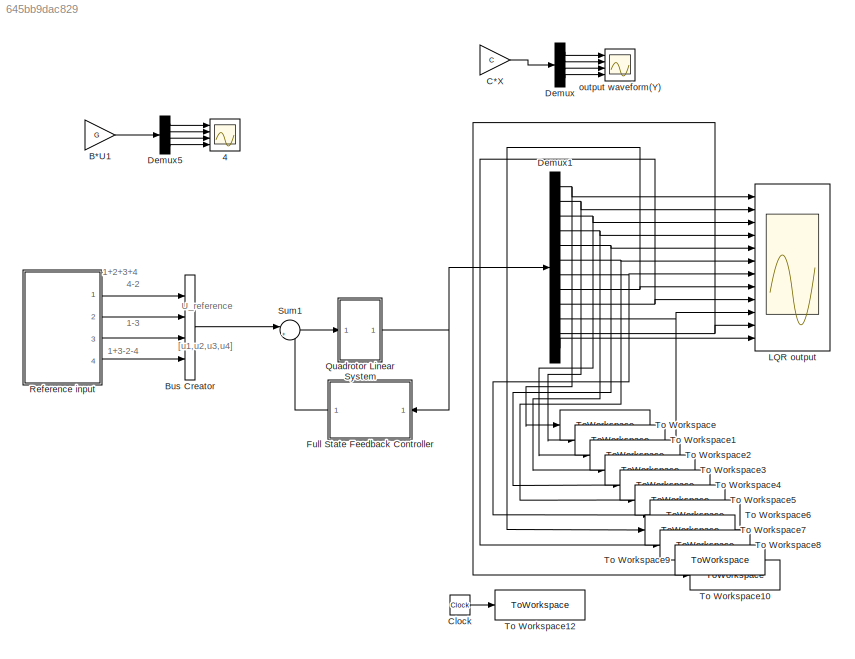
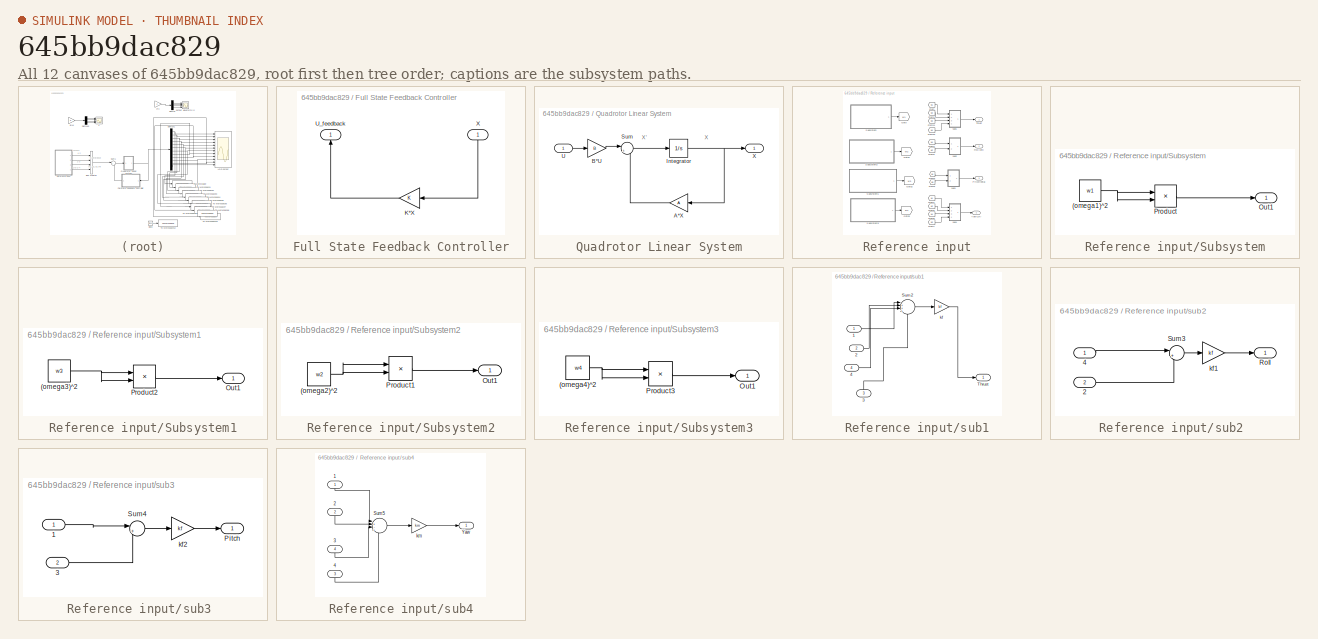
[diagram: thumbnail index - all 12 canvases of the model, root first then tree order]
MODEL slx_645bb9dac829
KIND model
CONFIG AbsTol = auto
CONFIG EnableMultiTasking = off
CONFIG FixedStep = auto
CONFIG MaxStep = auto
CONFIG MinStep = auto
CONFIG RelTol = 1e-3
CONFIG SampleTimeConstraint = Unconstrained
CONFIG Solver = VariableStepAuto
CONFIG SolverName = VariableStepAuto
CONFIG StartTime = 0.0
CONFIG StopTime = 10
BLOCK [Scope] 4
  Floating = off
  NumInputPorts = 4
  Ports = [4]
  ScopeSpecificationString = Simulink.scopes.TimeScopeBlockCfg('CurrentConfiguration', extmgr.ConfigurationSet(extmgr.Configuration('Core','General UI',true),extmgr.Configuration('Core','Source UI',true),extmgr.Configuration('Sources','WiredSimulink',true,'DataLoggingVariableName','ScopeData3'),extmgr.Configuration('Visuals','Time Domain',true,'SerializedDisplays',{struct('MinYLimReal','-260277233475571970000.00000','MaxYLimR...<+3624ch>
BLOCK [Gain] B*U1
  Gain = G
  Multiplication = Matrix(K*u)
BLOCK [BusCreator] Bus Creator
  DisplayOption = bar
  InheritFromInputs = on
  Inputs = 4
  Ports = [4, 1]
BLOCK [Gain] C*X
  Gain = C
  Multiplication = Matrix(K*u)
BLOCK [Clock] Clock
  Decimation = 1
BLOCK [Demux] Demux
  Ports = [1, 4]
BLOCK [Demux] Demux1
  Outputs = 12
  Ports = [1, 12]
BLOCK [Demux] Demux5
  Ports = [1, 4]
BLOCK [SubSystem] Full State Feedback Controller
  Ports = [1, 1]
  RequestExecContextInheritance = off
BLOCK [Gain] Full State Feedback Controller/K*X
  Gain = K
  Multiplication = Matrix(K*u)
BLOCK [Outport] Full State Feedback Controller/U_feedback
  NameLocation = right
BLOCK [Inport] Full State Feedback Controller/X
  NameLocation = right
BLOCK [Scope] LQR output 
  Floating = off
  NumInputPorts = 12
  Ports = [12]
  ScopeSpecificationString = Simulink.scopes.TimeScopeBlockCfg('CurrentConfiguration', extmgr.ConfigurationSet(extmgr.Configuration('Core','General UI',true,'FigureColor',[1 1 1]),extmgr.Configuration('Core','Source UI',true),extmgr.Configuration('Sources','WiredSimulink',true,'DataLoggingVariableName','ScopeData5','DataLogging',true),extmgr.Configuration('Visuals','Time Domain',true,'SerializedDisplays',{struct('MinYLimReal'...<+10709ch>
BLOCK [SubSystem] Quadrotor Linear System
  Ports = [1, 1]
  RequestExecContextInheritance = off
BLOCK [Gain] Quadrotor Linear System/A*X
  Gain = A
  Multiplication = Matrix(K*u)
BLOCK [Gain] Quadrotor Linear System/B*U
  Gain = B
  Multiplication = Matrix(K*u)
BLOCK [Integrator] Quadrotor Linear System/Integrator
  InitialCondition = [1,1,1,1,1,1,1,1,1,1,1,1]
  Ports = [1, 1]
BLOCK [Sum] Quadrotor Linear System/Sum
  Inputs = |++
  Ports = [2, 1]
BLOCK [Inport] Quadrotor Linear System/U
BLOCK [Outport] Quadrotor Linear System/X
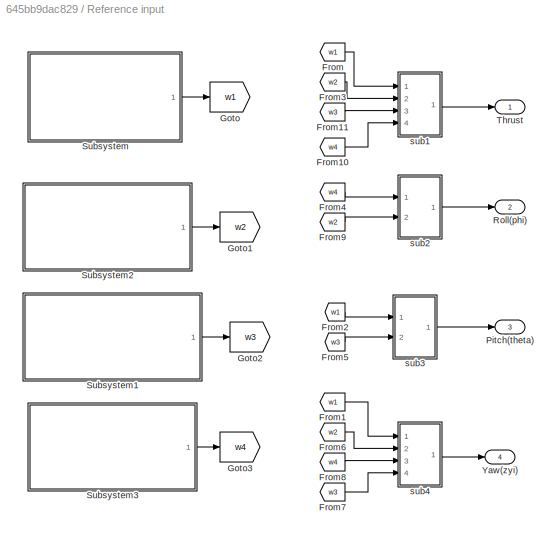
BLOCK [SubSystem] Reference input
  Ports = [0, 4]
  RequestExecContextInheritance = off
BLOCK [From] Reference input/From
  GotoTag = w1
BLOCK [From] Reference input/From1
  GotoTag = w1
BLOCK [From] Reference input/From10
  GotoTag = w4
BLOCK [From] Reference input/From11
  GotoTag = w3
BLOCK [From] Reference input/From2
  GotoTag = w1
BLOCK [From] Reference input/From3
  GotoTag = w2
BLOCK [From] Reference input/From4
  GotoTag = w4
BLOCK [From] Reference input/From5
  GotoTag = w3
BLOCK [From] Reference input/From6
  GotoTag = w2
BLOCK [From] Reference input/From7
  GotoTag = w3
BLOCK [From] Reference input/From8
  GotoTag = w4
BLOCK [From] Reference input/From9
  GotoTag = w2
BLOCK [Goto] Reference input/Goto
  GotoTag = w1
BLOCK [Goto] Reference input/Goto1
  GotoTag = w2
BLOCK [Goto] Reference input/Goto2
  GotoTag = w3
BLOCK [Goto] Reference input/Goto3
  GotoTag = w4
BLOCK [Outport] Reference input/Pitch(theta)
  Port = 3
BLOCK [Outport] Reference input/Roll(phi)
  Port = 2
BLOCK [SubSystem] Reference input/Subsystem
  Ports = [0, 1]
  RequestExecContextInheritance = off
BLOCK [Constant] Reference input/Subsystem/(omega1)^2
  NameLocation = top
  Value = w1
BLOCK [Outport] Reference input/Subsystem/Out1
BLOCK [Product] Reference input/Subsystem/Product
  Ports = [2, 1]
BLOCK [SubSystem] Reference input/Subsystem1
  Ports = [0, 1]
  RequestExecContextInheritance = off
BLOCK [Constant] Reference input/Subsystem1/(omega3)^2
  Value = w3
BLOCK [Outport] Reference input/Subsystem1/Out1
BLOCK [Product] Reference input/Subsystem1/Product2
  Ports = [2, 1]
BLOCK [SubSystem] Reference input/Subsystem2
  Ports = [0, 1]
  RequestExecContextInheritance = off
BLOCK [Constant] Reference input/Subsystem2/(omega2)^2
  Value = w2
BLOCK [Outport] Reference input/Subsystem2/Out1
BLOCK [Product] Reference input/Subsystem2/Product1
  Ports = [2, 1]
BLOCK [SubSystem] Reference input/Subsystem3
  Ports = [0, 1]
  RequestExecContextInheritance = off
BLOCK [Constant] Reference input/Subsystem3/(omega4)^2
  Value = w4
BLOCK [Outport] Reference input/Subsystem3/Out1
BLOCK [Product] Reference input/Subsystem3/Product3
  Ports = [2, 1]
BLOCK [Outport] Reference input/Thrust
BLOCK [Outport] Reference input/Yaw(zyi)
  Port = 4
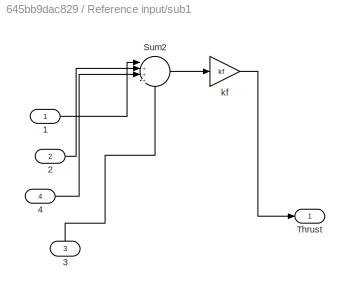
BLOCK [SubSystem] Reference input/sub1
  Ports = [4, 1]
  RequestExecContextInheritance = off
BLOCK [Inport] Reference input/sub1/1
BLOCK [Inport] Reference input/sub1/2
  Port = 2
BLOCK [Inport] Reference input/sub1/3
  NameLocation = right
  Port = 3
BLOCK [Inport] Reference input/sub1/4
  Port = 4
BLOCK [Sum] Reference input/sub1/Sum2
  Inputs = |++++
  Ports = [4, 1]
BLOCK [Outport] Reference input/sub1/Thrust
BLOCK [Gain] Reference input/sub1/kf
  Gain = kf
BLOCK [SubSystem] Reference input/sub2 
  Ports = [2, 1]
  RequestExecContextInheritance = off
BLOCK [Inport] Reference input/sub2 /2
  Port = 2
BLOCK [Inport] Reference input/sub2 /4
BLOCK [Outport] Reference input/sub2 /Roll
BLOCK [Sum] Reference input/sub2 /Sum3
  Inputs = |+-
  Ports = [2, 1]
BLOCK [Gain] Reference input/sub2 /kf1
  Gain = kf
BLOCK [SubSystem] Reference input/sub3 
  Ports = [2, 1]
  RequestExecContextInheritance = off
BLOCK [Inport] Reference input/sub3 /1
BLOCK [Inport] Reference input/sub3 /3
  Port = 2
BLOCK [Outport] Reference input/sub3 /Pitch
BLOCK [Sum] Reference input/sub3 /Sum4
  Inputs = |+-
  Ports = [2, 1]
BLOCK [Gain] Reference input/sub3 /kf2
  Gain = kf
BLOCK [SubSystem] Reference input/sub4
  Ports = [4, 1]
  RequestExecContextInheritance = off
BLOCK [Inport] Reference input/sub4/1
  NameLocation = right
BLOCK [Inport] Reference input/sub4/2
  NameLocation = right
  Port = 2
BLOCK [Inport] Reference input/sub4/3 
  NameLocation = right
  Port = 4
BLOCK [Inport] Reference input/sub4/4 
  NameLocation = right
  Port = 3
BLOCK [Sum] Reference input/sub4/Sum5
  Inputs = |+-+-
  Ports = [4, 1]
BLOCK [Outport] Reference input/sub4/Yaw
BLOCK [Gain] Reference input/sub4/km
  Gain = km
BLOCK [Sum] Sum1
  Inputs = |+-
  Ports = [2, 1]
BLOCK [ToWorkspace] To Workspace
  FixptAsFi = on
  MaxDataPoints = inf
  Ports = [1]
  SampleTime = 0.1
  VariableName = x
BLOCK [ToWorkspace] To Workspace1
  FixptAsFi = on
  MaxDataPoints = inf
  Ports = [1]
  SampleTime = 0.1
  VariableName = y
BLOCK [ToWorkspace] To Workspace10
  FixptAsFi = on
  MaxDataPoints = inf
  Ports = [1]
  SampleTime = 0.1
  VariableName = q
BLOCK [ToWorkspace] To Workspace12
  FixptAsFi = on
  MaxDataPoints = inf
  Ports = [1]
  SampleTime = 0.001
  VariableName = t
BLOCK [ToWorkspace] To Workspace2
  FixptAsFi = on
  MaxDataPoints = inf
  Ports = [1]
  SampleTime = 0.1
  VariableName = z
BLOCK [ToWorkspace] To Workspace3
  FixptAsFi = on
  MaxDataPoints = inf
  Ports = [1]
  SampleTime = 0.1
  VariableName = x_dot
BLOCK [ToWorkspace] To Workspace4
  FixptAsFi = on
  MaxDataPoints = inf
  Ports = [1]
  SampleTime = 0.1
  VariableName = y_dot
BLOCK [ToWorkspace] To Workspace5
  FixptAsFi = on
  MaxDataPoints = inf
  Ports = [1]
  SampleTime = 0.1
  VariableName = z_dot
BLOCK [ToWorkspace] To Workspace6
  FixptAsFi = on
  MaxDataPoints = inf
  Ports = [1]
  SampleTime = 0.1
  VariableName = phi
BLOCK [ToWorkspace] To Workspace7
  FixptAsFi = on
  MaxDataPoints = inf
  Ports = [1]
  SampleTime = 0.1
  VariableName = theta
BLOCK [ToWorkspace] To Workspace8
  FixptAsFi = on
  MaxDataPoints = inf
  Ports = [1]
  SampleTime = 0.1
  VariableName = zyi
BLOCK [ToWorkspace] To Workspace9
  FixptAsFi = on
  MaxDataPoints = inf
  Ports = [1]
  SampleTime = 0.1
  VariableName = p
BLOCK [Scope] output waveform(Y)
  Floating = off
  NumInputPorts = 4
  Ports = [4]
  ScopeSpecificationString = Simulink.scopes.TimeScopeBlockCfg('CurrentConfiguration', extmgr.ConfigurationSet(extmgr.Configuration('Core','General UI',true),extmgr.Configuration('Core','Source UI',true),extmgr.Configuration('Sources','WiredSimulink',true),extmgr.Configuration('Visuals','Time Domain',true,'SerializedDisplays',{struct('MinYLimReal','0.03272','MaxYLimReal','1.10877','YLabelReal','','MinYLimMag','0.03272','MaxYL...<+3349ch>
ANNOTATION (root): 1+2+3+4
ANNOTATION (root): 1+3-2-4
ANNOTATION (root): 1-3
ANNOTATION (root): 4-2
ANNOTATION (root): U_reference
ANNOTATION (root): [u1,u2,u3,u4]
ANNOTATION Quadrotor Linear System: X
ANNOTATION Quadrotor Linear System: X'
LINE B*U1:1 -> Demux5:1
LINE Bus Creator:1 -> Sum1:1
LINE C*X:1 -> Demux:1
LINE Clock:1 -> To Workspace12:1
NET Demux1:1 -> LQR output :1, To Workspace:1
NET Demux1:10 -> LQR output :10, To Workspace9:1
NET Demux1:11 -> LQR output :11, To Workspace10:1
LINE Demux1:12 -> LQR output :12
NET Demux1:2 -> LQR output :2, To Workspace1:1
NET Demux1:3 -> LQR output :3, To Workspace2:1
NET Demux1:4 -> LQR output :4, To Workspace3:1
NET Demux1:5 -> LQR output :5, To Workspace4:1
NET Demux1:6 -> LQR output :6, To Workspace5:1
NET Demux1:7 -> LQR output :7, To Workspace6:1
NET Demux1:8 -> LQR output :8, To Workspace7:1
NET Demux1:9 -> LQR output :9, To Workspace8:1
LINE Demux5:1 -> 4:1
LINE Demux5:2 -> 4:2
LINE Demux5:3 -> 4:3
LINE Demux5:4 -> 4:4
LINE Demux:1 -> output waveform(Y):1
LINE Demux:2 -> output waveform(Y):2
LINE Demux:3 -> output waveform(Y):3
LINE Demux:4 -> output waveform(Y):4
LINE Full State Feedback Controller/K*X:1 -> Full State Feedback Controller/U_feedback:1
LINE Full State Feedback Controller/X:1 -> Full State Feedback Controller/K*X:1
LINE Full State Feedback Controller:1 -> Sum1:2
LINE Quadrotor Linear System/A*X:1 -> Quadrotor Linear System/Sum:2
LINE Quadrotor Linear System/B*U:1 -> Quadrotor Linear System/Sum:1
NET Quadrotor Linear System/Integrator:1 -> Quadrotor Linear System/A*X:1, Quadrotor Linear System/X:1
LINE Quadrotor Linear System/Sum:1 -> Quadrotor Linear System/Integrator:1
LINE Quadrotor Linear System/U:1 -> Quadrotor Linear System/B*U:1
NET Quadrotor Linear System:1 -> Demux1:1, Full State Feedback Controller:1
LINE Reference input/From10:1 -> Reference input/sub1:4
LINE Reference input/From11:1 -> Reference input/sub1:3
LINE Reference input/From1:1 -> Reference input/sub4:1
LINE Reference input/From2:1 -> Reference input/sub3 :1
LINE Reference input/From3:1 -> Reference input/sub1:2
LINE Reference input/From4:1 -> Reference input/sub2 :1
LINE Reference input/From5:1 -> Reference input/sub3 :2
LINE Reference input/From6:1 -> Reference input/sub4:2
LINE Reference input/From7:1 -> Reference input/sub4:4
LINE Reference input/From8:1 -> Reference input/sub4:3
LINE Reference input/From9:1 -> Reference input/sub2 :2
LINE Reference input/From:1 -> Reference input/sub1:1
NET Reference input/Subsystem/(omega1)^2:1 -> Reference input/Subsystem/Product:1, Reference input/Subsystem/Product:2
LINE Reference input/Subsystem/Product:1 -> Reference input/Subsystem/Out1:1
NET Reference input/Subsystem1/(omega3)^2:1 -> Reference input/Subsystem1/Product2:1, Reference input/Subsystem1/Product2:2
LINE Reference input/Subsystem1/Product2:1 -> Reference input/Subsystem1/Out1:1
LINE Reference input/Subsystem1:1 -> Reference input/Goto2:1
NET Reference input/Subsystem2/(omega2)^2:1 -> Reference input/Subsystem2/Product1:1, Reference input/Subsystem2/Product1:2
LINE Reference input/Subsystem2/Product1:1 -> Reference input/Subsystem2/Out1:1
LINE Reference input/Subsystem2:1 -> Reference input/Goto1:1
NET Reference input/Subsystem3/(omega4)^2:1 -> Reference input/Subsystem3/Product3:1, Reference input/Subsystem3/Product3:2
LINE Reference input/Subsystem3/Product3:1 -> Reference input/Subsystem3/Out1:1
LINE Reference input/Subsystem3:1 -> Reference input/Goto3:1
LINE Reference input/Subsystem:1 -> Reference input/Goto:1
LINE Reference input/sub1/1:1 -> Reference input/sub1/Sum2:1
LINE Reference input/sub1/2:1 -> Reference input/sub1/Sum2:2
LINE Reference input/sub1/3:1 -> Reference input/sub1/Sum2:4
LINE Reference input/sub1/4:1 -> Reference input/sub1/Sum2:3
LINE Reference input/sub1/Sum2:1 -> Reference input/sub1/kf:1
LINE Reference input/sub1/kf:1 -> Reference input/sub1/Thrust:1
LINE Reference input/sub1:1 -> Reference input/Thrust:1
LINE Reference input/sub2 /2:1 -> Reference input/sub2 /Sum3:2
LINE Reference input/sub2 /4:1 -> Reference input/sub2 /Sum3:1
LINE Reference input/sub2 /Sum3:1 -> Reference input/sub2 /kf1:1
LINE Reference input/sub2 /kf1:1 -> Reference input/sub2 /Roll:1
LINE Reference input/sub2 :1 -> Reference input/Roll(phi):1
LINE Reference input/sub3 /1:1 -> Reference input/sub3 /Sum4:1
LINE Reference input/sub3 /3:1 -> Reference input/sub3 /Sum4:2
LINE Reference input/sub3 /Sum4:1 -> Reference input/sub3 /kf2:1
LINE Reference input/sub3 /kf2:1 -> Reference input/sub3 /Pitch:1
LINE Reference input/sub3 :1 -> Reference input/Pitch(theta):1
LINE Reference input/sub4/1:1 -> Reference input/sub4/Sum5:1
LINE Reference input/sub4/2:1 -> Reference input/sub4/Sum5:2
LINE Reference input/sub4/3 :1 -> Reference input/sub4/Sum5:3
LINE Reference input/sub4/4 :1 -> Reference input/sub4/Sum5:4
LINE Reference input/sub4/Sum5:1 -> Reference input/sub4/km:1
LINE Reference input/sub4/km:1 -> Reference input/sub4/Yaw:1
LINE Reference input/sub4:1 -> Reference input/Yaw(zyi):1
LINE Reference input:1 -> Bus Creator:1
LINE Reference input:2 -> Bus Creator:2
LINE Reference input:3 -> Bus Creator:3
LINE Reference input:4 -> Bus Creator:4
LINE Sum1:1 -> Quadrotor Linear System:1
note: NET lines group one-source signal fan-out (src -> all destinations, sorted); 1:1 wires keep LINE
